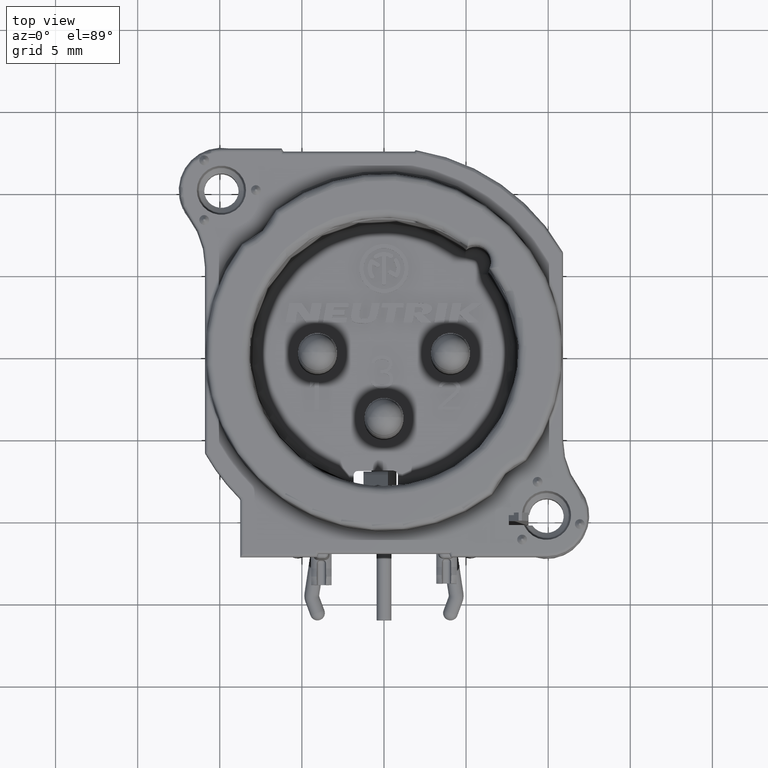
[diagram: clean part render]
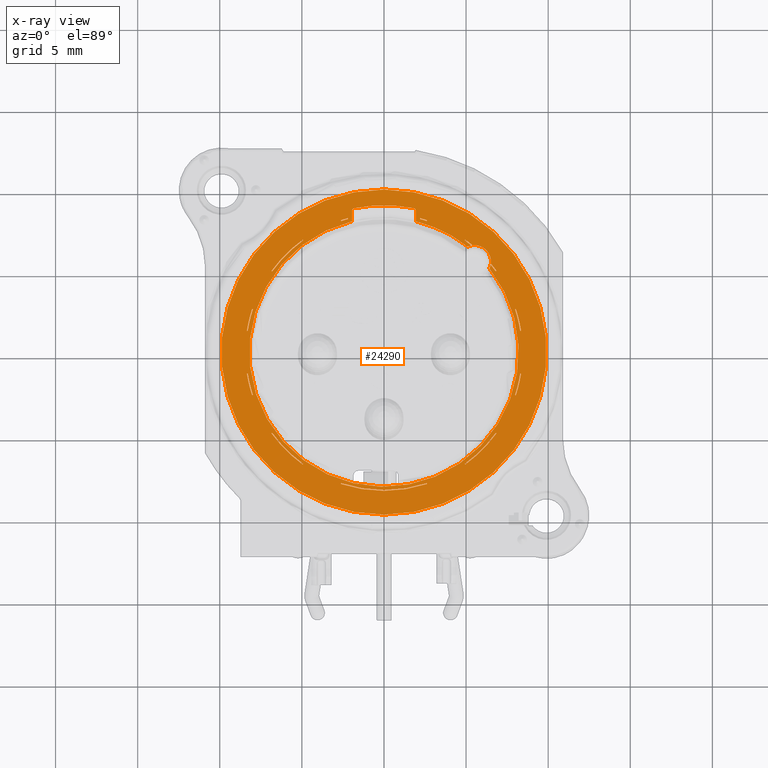
[diagram: x-ray — body ghosted, one internal face saturated and labeled with its STEP entity id]
A machine part, top view, then the same camera in x-ray: the body is ghosted and one INTERNAL B-rep face — a face not visible from any outside direction — is saturated and labeled: STEP entity #24290.
In plain terms, the highlighted planar face has unit normal (0, 0, -1).
Its self-contained STEP definition (entity closure, byte-faithful):
#6=DIRECTION('',(-8.910065241986E-1,4.539904997194E-1,0.E0));
#7=VECTOR('',#6,5.304026074555E-2);
#8=CARTESIAN_POINT('',(-7.982337784483E0,2.608043317220E0,2.7E0));
#9=LINE('',#8,#7);
#15=CARTESIAN_POINT('',(5.515432893255E0,5.515432893255E0,2.7E0));
#16=DIRECTION('',(0.E0,0.E0,1.E0));
#17=DIRECTION('',(9.081595900515E-1,-4.186241261531E-1,0.E0));
#18=AXIS2_PLACEMENT_3D('',#15,#16,#17);
#20=DIRECTION('',(0.E0,1.E0,0.E0));
#21=VECTOR('',#20,6.140104234412E-1);
#22=CARTESIAN_POINT('',(-1.95E0,7.964766161037E0,2.7E0));
#23=LINE('',#22,#21);
#24=CARTESIAN_POINT('',(0.E0,0.E0,2.7E0));
#25=DIRECTION('',(0.E0,0.E0,-1.E0));
#26=DIRECTION('',(-2.006225857042E-1,9.796686062671E-1,0.E0));
#27=AXIS2_PLACEMENT_3D('',#24,#25,#26);
#29=DIRECTION('',(0.E0,-1.E0,0.E0));
#30=VECTOR('',#29,6.140104234412E-1);
#31=CARTESIAN_POINT('',(1.95E0,8.578776584478E0,2.7E0));
#32=LINE('',#31,#30);
#33=CARTESIAN_POINT('',(0.E0,0.E0,2.7E0));
#34=DIRECTION('',(0.E0,0.E0,-1.E0));
#35=DIRECTION('',(2.378048780488E-1,9.713129464679E-1,0.E0));
#36=AXIS2_PLACEMENT_3D('',#33,#34,#35);
#38=CARTESIAN_POINT('',(5.515432893255E0,5.515432893255E0,2.7E0));
#39=DIRECTION('',(0.E0,0.E0,1.E0));
#40=DIRECTION('',(-1.941287962017E-1,9.809760499040E-1,0.E0));
#41=AXIS2_PLACEMENT_3D('',#38,#39,#40);
#43=CARTESIAN_POINT('',(5.515432893255E0,5.515432893255E0,2.7E0));
#44=DIRECTION('',(0.E0,0.E0,1.E0));
#45=DIRECTION('',(9.921263900771E-1,-1.252406727570E-1,0.E0));
#46=AXIS2_PLACEMENT_3D('',#43,#44,#45);
#58=CARTESIAN_POINT('',(0.E0,0.E0,2.7E0));
#59=DIRECTION('',(0.E0,0.E0,-1.E0));
#60=DIRECTION('',(0.E0,1.E0,0.E0));
#61=AXIS2_PLACEMENT_3D('',#58,#59,#60);
#99=CARTESIAN_POINT('',(0.E0,0.E0,2.7E0));
#100=DIRECTION('',(0.E0,0.E0,-1.E0));
#101=DIRECTION('',(0.E0,-1.E0,0.E0));
#102=AXIS2_PLACEMENT_3D('',#99,#100,#101);
#13927=CARTESIAN_POINT('',(0.E0,0.E0,2.7E0));
#13928=DIRECTION('',(0.E0,0.E0,-1.E0));
#13929=DIRECTION('',(2.619942776560E-1,9.650694267645E-1,0.E0));
#13930=AXIS2_PLACEMENT_3D('',#13927,#13928,#13929);
#13942=DIRECTION('',(4.539904997543E-1,8.910065241809E-1,0.E0));
#13943=VECTOR('',#13942,5.304026079342E-2);
#13944=CARTESIAN_POINT('',(2.608043317218E0,7.982337784483E0,2.7E0));
#13945=LINE('',#13944,#13943);
#13951=CARTESIAN_POINT('',(0.E0,0.E0,2.7E0));
#13952=DIRECTION('',(0.E0,0.E0,-1.E0));
#13953=DIRECTION('',(7.701253589742E-1,6.378925704731E-1,0.E0));
#13954=AXIS2_PLACEMENT_3D('',#13951,#13952,#13953);
#13978=CARTESIAN_POINT('',(0.E0,0.E0,2.7E0));
#13979=DIRECTION('',(0.E0,0.E0,-1.E0));
#13980=DIRECTION('',(9.502481660337E-1,3.114938570015E-1,0.E0));
#13981=AXIS2_PLACEMENT_3D('',#13978,#13979,#13980);
#14014=CARTESIAN_POINT('',(0.E0,0.E0,2.7E0));
#14015=DIRECTION('',(0.E0,0.E0,-1.E0));
#14016=DIRECTION('',(9.880925673401E-1,-1.538605809400E-1,0.E0));
#14017=AXIS2_PLACEMENT_3D('',#14014,#14015,#14016);
#14050=CARTESIAN_POINT('',(0.E0,0.E0,2.7E0));
#14051=DIRECTION('',(0.E0,0.E0,-1.E0));
#14052=DIRECTION('',(8.105456819702E-1,-5.856754198696E-1,0.E0));
#14053=AXIS2_PLACEMENT_3D('',#14050,#14051,#14052);
#14086=CARTESIAN_POINT('',(0.E0,0.E0,2.7E0));
#14087=DIRECTION('',(0.E0,0.E0,-1.E0));
#14088=DIRECTION('',(3.114938570028E-1,-9.502481660332E-1,0.E0));
#14089=AXIS2_PLACEMENT_3D('',#14086,#14087,#14088);
#14122=CARTESIAN_POINT('',(0.E0,0.E0,2.7E0));
#14123=DIRECTION('',(0.E0,0.E0,-1.E0));
#14124=DIRECTION('',(-5.856754198634E-1,-8.105456819747E-1,0.E0));
#14125=AXIS2_PLACEMENT_3D('',#14122,#14123,#14124);
#14158=CARTESIAN_POINT('',(0.E0,0.E0,2.7E0));
#14159=DIRECTION('',(0.E0,0.E0,-1.E0));
#14160=DIRECTION('',(-9.502481660302E-1,-3.114938570120E-1,0.E0));
#14161=AXIS2_PLACEMENT_3D('',#14158,#14159,#14160);
#14194=CARTESIAN_POINT('',(0.E0,0.E0,2.7E0));
#14195=DIRECTION('',(0.E0,0.E0,-1.E0));
#14196=DIRECTION('',(-9.880925673419E-1,1.538605809285E-1,0.E0));
#14197=AXIS2_PLACEMENT_3D('',#14194,#14195,#14196);
#14230=CARTESIAN_POINT('',(0.E0,0.E0,2.7E0));
#14231=DIRECTION('',(0.E0,0.E0,-1.E0));
#14232=DIRECTION('',(-8.105456819795E-1,5.856754198568E-1,0.E0));
#14233=AXIS2_PLACEMENT_3D('',#14230,#14231,#14232);
#14266=CARTESIAN_POINT('',(0.E0,0.E0,2.7E0));
#14267=DIRECTION('',(0.E0,0.E0,-1.E0));
#14268=DIRECTION('',(-3.114938570140E-1,9.502481660296E-1,0.E0));
#14269=AXIS2_PLACEMENT_3D('',#14266,#14267,#14268);
#14302=CARTESIAN_POINT('',(0.E0,0.E0,2.7E0));
#14303=DIRECTION('',(0.E0,0.E0,-1.E0));
#14304=DIRECTION('',(2.603694566774E-1,9.655090605631E-1,0.E0));
#14305=AXIS2_PLACEMENT_3D('',#14302,#14303,#14304);
#14338=CARTESIAN_POINT('',(0.E0,0.E0,2.7E0));
#14339=DIRECTION('',(0.E0,0.E0,-1.E0));
#14340=DIRECTION('',(5.856754198668E-1,8.105456819722E-1,0.E0));
#14341=AXIS2_PLACEMENT_3D('',#14338,#14339,#14340);
#14388=CARTESIAN_POINT('',(0.E0,0.E0,2.7E0));
#14389=DIRECTION('',(0.E0,0.E0,-1.E0));
#14390=DIRECTION('',(5.864628337465E-1,8.099761383115E-1,0.E0));
#14391=AXIS2_PLACEMENT_3D('',#14388,#14389,#14390);
#14403=DIRECTION('',(-4.539904997710E-1,-8.910065241723E-1,0.E0));
#14404=VECTOR('',#14403,5.304026071909E-2);
#14405=CARTESIAN_POINT('',(4.948957297757E0,6.849111012578E0,2.7E0));
#14406=LINE('',#14405,#14404);
#14597=CARTESIAN_POINT('',(0.E0,0.E0,2.7E0));
#14598=DIRECTION('',(0.E0,0.E0,1.E0));
#14599=DIRECTION('',(-2.378048780488E-1,9.713129464679E-1,0.E0));
#14600=AXIS2_PLACEMENT_3D('',#14597,#14598,#14599);
#14623=CARTESIAN_POINT('',(1.95E0,8.578776584478E0,2.7E0));
#14625=CARTESIAN_POINT('',(1.95E0,8.578776584478E0,2.7E0));
#14626=CARTESIAN_POINT('',(1.950000000032E0,8.602134908610E0,2.7E0));
#14627=CARTESIAN_POINT('',(1.942273362003E0,8.645624592729E0,2.7E0));
#14628=CARTESIAN_POINT('',(1.909973589364E0,8.703636616568E0,2.699999999999E0));
#14629=CARTESIAN_POINT('',(1.859457158406E0,8.747109287319E0,2.700000000005E0));
#14630=CARTESIAN_POINT('',(1.818430073848E0,8.763353037773E0,2.699999999989E0));
#14631=CARTESIAN_POINT('',(1.795572142117E0,8.768034026171E0,2.699999999989E0));
#14637=CARTESIAN_POINT('',(1.795572142117E0,8.768034026171E0,2.699999999989E0));
#14643=CARTESIAN_POINT('',(-1.795572142117E0,8.768034026171E0,
2.699999999989E0));
#14650=CARTESIAN_POINT('',(-1.795572142117E0,8.768034026171E0,
2.699999999989E0));
#14651=CARTESIAN_POINT('',(-1.818465818642E0,8.763345717734E0,
2.699999999989E0));
#14652=CARTESIAN_POINT('',(-1.859532717103E0,8.747022878452E0,
2.700000000005E0));
#14653=CARTESIAN_POINT('',(-1.909784034211E0,8.703872645540E0,
2.699999999999E0));
#14654=CARTESIAN_POINT('',(-1.942353347184E0,8.645505213761E0,2.7E0));
#14655=CARTESIAN_POINT('',(-1.950000000032E0,8.602085701230E0,2.7E0));
#14656=CARTESIAN_POINT('',(-1.95E0,8.578776584478E0,2.7E0));
#14666=CARTESIAN_POINT('',(-1.95E0,8.578776584478E0,2.7E0));
#15102=CARTESIAN_POINT('',(0.E0,0.E0,2.7E0));
#15103=DIRECTION('',(0.E0,0.E0,-1.E0));
#15104=DIRECTION('',(7.736034815011E-1,6.336699877771E-1,0.E0));
#15105=AXIS2_PLACEMENT_3D('',#15102,#15103,#15104);
#15117=DIRECTION('',(8.910065241797E-1,4.539904997565E-1,0.E0));
#15118=VECTOR('',#15117,5.304026072539E-2);
#15119=CARTESIAN_POINT('',(6.801851794227E0,4.924877523283E0,2.7E0));
#15120=LINE('',#15119,#15118);
#15278=DIRECTION('',(-8.910065241884E-1,-4.539904997395E-1,0.E0));
#15279=VECTOR('',#15278,5.304026065426E-2);
#15280=CARTESIAN_POINT('',(8.029597002771E0,2.632123091659E0,2.7E0));
#15281=LINE('',#15280,#15279);
#15287=CARTESIAN_POINT('',(0.E0,0.E0,2.7E0));
#15288=DIRECTION('',(0.E0,0.E0,-1.E0));
#15289=DIRECTION('',(9.505504278785E-1,3.105702562383E-1,0.E0));
#15290=AXIS2_PLACEMENT_3D('',#15287,#15288,#15289);
#15302=DIRECTION('',(1.E0,2.297882426440E-11,0.E0));
#15303=VECTOR('',#15302,5.304026099899E-2);
#15304=CARTESIAN_POINT('',(8.296341933176E0,1.300121908859E0,2.7E0));
#15305=LINE('',#15304,#15303);
#15414=DIRECTION('',(-1.E0,-2.262717173756E-11,0.E0));
#15415=VECTOR('',#15414,5.304026077761E-2);
#15416=CARTESIAN_POINT('',(-8.296341933176E0,-1.300121908858E0,2.7E0));
#15417=LINE('',#15416,#15415);
#15648=DIRECTION('',(-1.E0,-1.255902226447E-14,0.E0));
#15649=VECTOR('',#15648,5.304026067855E-2);
#15650=CARTESIAN_POINT('',(8.349382193855E0,-1.300121908860E0,2.7E0));
#15651=LINE('',#15650,#15649);
#15657=CARTESIAN_POINT('',(0.E0,0.E0,2.7E0));
#15658=DIRECTION('',(0.E0,0.E0,-1.E0));
#15659=DIRECTION('',(9.879425786437E-1,-1.548207392530E-1,0.E0));
#15660=AXIS2_PLACEMENT_3D('',#15657,#15658,#15659);
#15672=DIRECTION('',(8.910065241986E-1,-4.539904997195E-1,0.E0));
#15673=VECTOR('',#15672,5.304026096835E-2);
#15674=CARTESIAN_POINT('',(7.982337784483E0,-2.608043317220E0,2.7E0));
#15675=LINE('',#15674,#15673);
#15803=DIRECTION('',(-8.910065241884E-1,4.539904997396E-1,0.E0));
#15804=VECTOR('',#15803,5.304026065698E-2);
#15805=CARTESIAN_POINT('',(6.849111012522E0,-4.948957297729E0,2.7E0));
#15806=LINE('',#15805,#15804);
#15817=CARTESIAN_POINT('',(0.E0,0.E0,2.7E0));
#15818=DIRECTION('',(0.E0,0.E0,-1.E0));
#15819=DIRECTION('',(8.099761383115E-1,-5.864628337465E-1,0.E0));
#15820=AXIS2_PLACEMENT_3D('',#15817,#15818,#15819);
#15832=DIRECTION('',(4.539904997607E-1,-8.910065241776E-1,0.E0));
#15833=VECTOR('',#15832,5.304026094492E-2);
#15834=CARTESIAN_POINT('',(4.924877523286E0,-6.801851794233E0,2.7E0));
#15835=LINE('',#15834,#15833);
#15963=DIRECTION('',(-4.539904997396E-1,8.910065241883E-1,0.E0));
#15964=VECTOR('',#15963,5.304026068019E-2);
#15965=CARTESIAN_POINT('',(2.632123091671E0,-8.029597002794E0,2.7E0));
#15966=LINE('',#15965,#15964);
#15977=CARTESIAN_POINT('',(0.E0,0.E0,2.7E0));
#15978=DIRECTION('',(0.E0,0.E0,-1.E0));
#15979=DIRECTION('',(3.105702562383E-1,-9.505504278785E-1,0.E0));
#15980=AXIS2_PLACEMENT_3D('',#15977,#15978,#15979);
#15992=DIRECTION('',(-4.539904997194E-1,-8.910065241986E-1,0.E0));
#15993=VECTOR('',#15992,5.304026085427E-2);
#15994=CARTESIAN_POINT('',(-2.608043317220E0,-7.982337784483E0,2.7E0));
#15995=LINE('',#15994,#15993);
#16123=DIRECTION('',(4.539904997395E-1,8.910065241884E-1,0.E0));
#16124=VECTOR('',#16123,5.304026079539E-2);
#16125=CARTESIAN_POINT('',(-4.948957297792E0,-6.849111012645E0,2.7E0));
#16126=LINE('',#16125,#16124);
#16137=CARTESIAN_POINT('',(0.E0,0.E0,2.7E0));
#16138=DIRECTION('',(0.E0,0.E0,-1.E0));
#16139=DIRECTION('',(-5.864628337465E-1,-8.099761383115E-1,0.E0));
#16140=AXIS2_PLACEMENT_3D('',#16137,#16138,#16139);
#16152=DIRECTION('',(-8.910065241777E-1,-4.539904997604E-1,0.E0));
#16153=VECTOR('',#16152,5.304026079527E-2);
#16154=CARTESIAN_POINT('',(-6.801851794233E0,-4.924877523286E0,2.7E0));
#16155=LINE('',#16154,#16153);
#16283=DIRECTION('',(8.910065241883E-1,4.539904997396E-1,0.E0));
#16284=VECTOR('',#16283,5.304026085667E-2);
#16285=CARTESIAN_POINT('',(-8.029597002951E0,-2.632123091751E0,2.7E0));
#16286=LINE('',#16285,#16284);
#16297=CARTESIAN_POINT('',(0.E0,0.E0,2.7E0));
#16298=DIRECTION('',(0.E0,0.E0,-1.E0));
#16299=DIRECTION('',(-9.505504278785E-1,-3.105702562383E-1,0.E0));
#16300=AXIS2_PLACEMENT_3D('',#16297,#16298,#16299);
#16490=DIRECTION('',(1.E0,0.E0,0.E0));
#16491=VECTOR('',#16490,5.304026089103E-2);
#16492=CARTESIAN_POINT('',(-8.349382194067E0,1.300121908860E0,2.7E0));
#16493=LINE('',#16492,#16491);
#16499=CARTESIAN_POINT('',(0.E0,0.E0,2.7E0));
#16500=DIRECTION('',(0.E0,0.E0,-1.E0));
#16501=DIRECTION('',(-9.879425786437E-1,1.548207392530E-1,0.E0));
#16502=AXIS2_PLACEMENT_3D('',#16499,#16500,#16501);
#16715=DIRECTION('',(8.910065241884E-1,-4.539904997395E-1,0.E0));
#16716=VECTOR('',#16715,5.304026094505E-2);
#16717=CARTESIAN_POINT('',(-6.849111012779E0,4.948957297860E0,2.7E0));
#16718=LINE('',#16717,#16716);
#16724=CARTESIAN_POINT('',(0.E0,0.E0,2.7E0));
#16725=DIRECTION('',(0.E0,0.E0,-1.E0));
#16726=DIRECTION('',(-8.099761383115E-1,5.864628337465E-1,0.E0));
#16727=AXIS2_PLACEMENT_3D('',#16724,#16725,#16726);
#16739=DIRECTION('',(-4.539904997601E-1,8.910065241779E-1,0.E0));
#16740=VECTOR('',#16739,5.304026065688E-2);
#16741=CARTESIAN_POINT('',(-4.924877523286E0,6.801851794233E0,2.7E0));
#16742=LINE('',#16741,#16740);
#16870=DIRECTION('',(4.539904997395E-1,-8.910065241884E-1,0.E0));
#16871=VECTOR('',#16870,5.304026089610E-2);
#16872=CARTESIAN_POINT('',(-2.632123091769E0,8.029597002986E0,2.7E0));
#16873=LINE('',#16872,#16871);
#16884=CARTESIAN_POINT('',(0.E0,0.E0,2.7E0));
#16885=DIRECTION('',(0.E0,0.E0,-1.E0));
#16886=DIRECTION('',(-3.105702562383E-1,9.505504278785E-1,0.E0));
#16887=AXIS2_PLACEMENT_3D('',#16884,#16885,#16886);
#16899=DIRECTION('',(-2.830307821840E-11,1.E0,0.E0));
#16900=VECTOR('',#16899,5.428910079054E-2);
#16901=CARTESIAN_POINT('',(-2.200121908858E0,8.104262460967E0,2.7E0));
#16902=LINE('',#16901,#16900);
#17766=DIRECTION('',(-1.404519808106E-11,-1.E0,0.E0));
#17767=VECTOR('',#17766,5.428910072408E-2);
#17768=CARTESIAN_POINT('',(2.200121908860E0,8.158551561691E0,2.7E0));
#17769=LINE('',#17768,#17767);
#23273=CARTESIAN_POINT('',(1.95E0,7.964766161037E0,2.7E0));
#23274=CARTESIAN_POINT('',(5.096808767102E0,6.423592483307E0,2.7E0));
#23275=VERTEX_POINT('',#23273);
#23276=VERTEX_POINT('',#23274);
#23277=CARTESIAN_POINT('',(-1.95E0,7.964766161037E0,2.7E0));
#23278=CARTESIAN_POINT('',(6.423592483307E0,5.096808767102E0,2.7E0));
#23279=VERTEX_POINT('',#23277);
#23280=VERTEX_POINT('',#23278);
#23420=CARTESIAN_POINT('',(0.E0,9.903460533872E0,2.7E0));
#23421=CARTESIAN_POINT('',(0.E0,-9.903460533872E0,2.7E0));
#23422=VERTEX_POINT('',#23420);
#23423=VERTEX_POINT('',#23421);
#23431=VERTEX_POINT('',#14637);
#23432=VERTEX_POINT('',#14623);
#23441=VERTEX_POINT('',#14666);
#23442=VERTEX_POINT('',#14643);
#23612=CARTESIAN_POINT('',(6.507559283332E0,5.390192220498E0,2.7E0));
#23613=CARTESIAN_POINT('',(6.849111012665E0,4.948957297875E0,2.7E0));
#23614=VERTEX_POINT('',#23612);
#23615=VERTEX_POINT('',#23613);
#23616=CARTESIAN_POINT('',(8.029597002984E0,2.632123091662E0,2.7E0));
#23617=CARTESIAN_POINT('',(8.349382194047E0,1.300121908797E0,2.7E0));
#23618=VERTEX_POINT('',#23616);
#23619=VERTEX_POINT('',#23617);
#23620=CARTESIAN_POINT('',(8.349382194024E0,-1.300121908943E0,2.7E0));
#23621=CARTESIAN_POINT('',(8.029597002939E0,-2.632123091800E0,2.7E0));
#23622=VERTEX_POINT('',#23620);
#23623=VERTEX_POINT('',#23621);
#23624=CARTESIAN_POINT('',(6.849111012648E0,-4.948957297898E0,2.7E0));
#23625=CARTESIAN_POINT('',(4.948957297790E0,-6.849111012726E0,2.7E0));
#23626=VERTEX_POINT('',#23624);
#23627=VERTEX_POINT('',#23625);
#23628=CARTESIAN_POINT('',(2.632123091674E0,-8.029597002981E0,2.7E0));
#23629=CARTESIAN_POINT('',(-2.632123091750E0,-8.029597002956E0,2.7E0));
#23630=VERTEX_POINT('',#23628);
#23631=VERTEX_POINT('',#23629);
#23632=CARTESIAN_POINT('',(-4.948957297846E0,-6.849111012686E0,2.7E0));
#23633=CARTESIAN_POINT('',(-6.849111012686E0,-4.948957297846E0,2.7E0));
#23634=VERTEX_POINT('',#23632);
#23635=VERTEX_POINT('',#23633);
#23636=CARTESIAN_POINT('',(-8.029597002955E0,-2.632123091751E0,2.7E0));
#23637=CARTESIAN_POINT('',(-8.349382194031E0,-1.300121908898E0,2.7E0));
#23638=VERTEX_POINT('',#23636);
#23639=VERTEX_POINT('',#23637);
#23640=CARTESIAN_POINT('',(-8.349382194039E0,1.300121908846E0,2.7E0));
#23641=CARTESIAN_POINT('',(-8.029597002971E0,2.632123091702E0,2.7E0));
#23642=VERTEX_POINT('',#23640);
#23643=VERTEX_POINT('',#23641);
#23644=CARTESIAN_POINT('',(-6.849111012726E0,4.948957297790E0,2.7E0));
#23645=CARTESIAN_POINT('',(-4.948957297898E0,6.849111012649E0,2.7E0));
#23646=VERTEX_POINT('',#23644);
#23647=VERTEX_POINT('',#23645);
#23648=CARTESIAN_POINT('',(-2.632123091769E0,8.029597002950E0,2.7E0));
#23649=CARTESIAN_POINT('',(-2.200121908874E0,8.158551561772E0,2.7E0));
#23650=VERTEX_POINT('',#23648);
#23651=VERTEX_POINT('',#23649);
#23652=CARTESIAN_POINT('',(2.200121908924E0,8.158551561759E0,2.7E0));
#23653=CARTESIAN_POINT('',(2.632123091723E0,8.029597002964E0,2.7E0));
#23654=VERTEX_POINT('',#23652);
#23655=VERTEX_POINT('',#23653);
#23656=CARTESIAN_POINT('',(4.948957297875E0,6.849111012665E0,2.7E0));
#23657=CARTESIAN_POINT('',(5.390192220498E0,6.507559283332E0,2.7E0));
#23658=VERTEX_POINT('',#23656);
#23659=VERTEX_POINT('',#23657);
#23660=CARTESIAN_POINT('',(-2.200121908858E0,8.104262460967E0,2.7E0));
#23661=VERTEX_POINT('',#23660);
#23662=CARTESIAN_POINT('',(-2.608043317219E0,7.982337784483E0,2.7E0));
#23663=VERTEX_POINT('',#23662);
#23664=CARTESIAN_POINT('',(-4.924877523286E0,6.801851794233E0,2.7E0));
#23665=VERTEX_POINT('',#23664);
#23666=CARTESIAN_POINT('',(-6.801851794232E0,4.924877523287E0,2.7E0));
#23667=VERTEX_POINT('',#23666);
#23668=CARTESIAN_POINT('',(-7.982337784483E0,2.608043317220E0,2.7E0));
#23669=VERTEX_POINT('',#23668);
#23670=CARTESIAN_POINT('',(-8.296341933176E0,1.300121908860E0,2.7E0));
#23671=VERTEX_POINT('',#23670);
#23672=CARTESIAN_POINT('',(-7.982337784483E0,-2.608043317219E0,2.7E0));
#23673=VERTEX_POINT('',#23672);
#23674=CARTESIAN_POINT('',(-6.801851794233E0,-4.924877523286E0,2.7E0));
#23675=VERTEX_POINT('',#23674);
#23676=CARTESIAN_POINT('',(-4.924877523287E0,-6.801851794232E0,2.7E0));
#23677=VERTEX_POINT('',#23676);
#23678=CARTESIAN_POINT('',(-2.608043317220E0,-7.982337784483E0,2.7E0));
#23679=VERTEX_POINT('',#23678);
#23680=CARTESIAN_POINT('',(2.608043317219E0,-7.982337784483E0,2.7E0));
#23681=VERTEX_POINT('',#23680);
#23682=CARTESIAN_POINT('',(4.924877523286E0,-6.801851794233E0,2.7E0));
#23683=VERTEX_POINT('',#23682);
#23684=CARTESIAN_POINT('',(6.801851794232E0,-4.924877523287E0,2.7E0));
#23685=VERTEX_POINT('',#23684);
#23686=CARTESIAN_POINT('',(7.982337784483E0,-2.608043317220E0,2.7E0));
#23687=VERTEX_POINT('',#23686);
#23688=CARTESIAN_POINT('',(8.296341933176E0,-1.300121908860E0,2.7E0));
#23689=VERTEX_POINT('',#23688);
#23690=CARTESIAN_POINT('',(8.296341933176E0,1.300121908859E0,2.7E0));
#23691=VERTEX_POINT('',#23690);
#23692=CARTESIAN_POINT('',(7.982337784483E0,2.608043317219E0,2.7E0));
#23693=VERTEX_POINT('',#23692);
#23694=CARTESIAN_POINT('',(6.801851794227E0,4.924877523283E0,2.7E0));
#23695=VERTEX_POINT('',#23694);
#23696=CARTESIAN_POINT('',(4.924877523286E0,6.801851794233E0,2.7E0));
#23697=VERTEX_POINT('',#23696);
#23698=CARTESIAN_POINT('',(2.608043317218E0,7.982337784483E0,2.7E0));
#23699=VERTEX_POINT('',#23698);
#23700=CARTESIAN_POINT('',(2.200121908859E0,8.104262460967E0,2.7E0));
#23701=VERTEX_POINT('',#23700);
#23702=CARTESIAN_POINT('',(5.321304097053E0,6.496408943159E0,2.7E0));
#23703=VERTEX_POINT('',#23702);
#23704=CARTESIAN_POINT('',(-8.296341933176E0,-1.300121908858E0,2.7E0));
#23705=VERTEX_POINT('',#23704);
#23706=CARTESIAN_POINT('',(6.496408943159E0,5.321304097053E0,2.7E0));
#23707=VERTEX_POINT('',#23706);
#24146=CARTESIAN_POINT('',(0.E0,0.E0,2.7E0));
#24147=DIRECTION('',(0.E0,0.E0,-1.E0));
#24148=DIRECTION('',(0.E0,-1.E0,0.E0));
#24149=AXIS2_PLACEMENT_3D('',#24146,#24147,#24148);
#24150=PLANE('',#24149);
#24152=ORIENTED_EDGE('',*,*,#24151,.F.);
#24154=ORIENTED_EDGE('',*,*,#24153,.F.);
#24155=EDGE_LOOP('',(#24152,#24154));
#24156=FACE_OUTER_BOUND('',#24155,.F.);
#24158=ORIENTED_EDGE('',*,*,#24157,.T.);
#24160=ORIENTED_EDGE('',*,*,#24159,.F.);
#24162=ORIENTED_EDGE('',*,*,#24161,.F.);
#24164=ORIENTED_EDGE('',*,*,#24163,.F.);
#24166=ORIENTED_EDGE('',*,*,#24165,.F.);
#24168=ORIENTED_EDGE('',*,*,#24167,.T.);
#24170=ORIENTED_EDGE('',*,*,#24169,.F.);
#24172=ORIENTED_EDGE('',*,*,#24171,.T.);
#24174=ORIENTED_EDGE('',*,*,#24173,.F.);
#24176=ORIENTED_EDGE('',*,*,#24175,.T.);
#24178=ORIENTED_EDGE('',*,*,#24177,.T.);
#24180=ORIENTED_EDGE('',*,*,#24179,.F.);
#24182=ORIENTED_EDGE('',*,*,#24181,.F.);
#24184=ORIENTED_EDGE('',*,*,#24183,.F.);
#24186=ORIENTED_EDGE('',*,*,#24185,.T.);
#24188=ORIENTED_EDGE('',*,*,#24187,.F.);
#24189=EDGE_LOOP('',(#24158,#24160,#24162,#24164,#24166,#24168,#24170,#24172,
#24174,#24176,#24178,#24180,#24182,#24184,#24186,#24188));
#24190=FACE_BOUND('',#24189,.F.);
#24192=ORIENTED_EDGE('',*,*,#24191,.T.);
#24194=ORIENTED_EDGE('',*,*,#24193,.F.);
#24196=ORIENTED_EDGE('',*,*,#24195,.F.);
#24198=ORIENTED_EDGE('',*,*,#24197,.F.);
#24199=EDGE_LOOP('',(#24192,#24194,#24196,#24198));
#24200=FACE_BOUND('',#24199,.F.);
#24202=ORIENTED_EDGE('',*,*,#24201,.T.);
#24204=ORIENTED_EDGE('',*,*,#24203,.F.);
#24206=ORIENTED_EDGE('',*,*,#24205,.F.);
#24208=ORIENTED_EDGE('',*,*,#24207,.F.);
#24209=EDGE_LOOP('',(#24202,#24204,#24206,#24208));
#24210=FACE_BOUND('',#24209,.F.);
#24212=ORIENTED_EDGE('',*,*,#24211,.T.);
#24214=ORIENTED_EDGE('',*,*,#24213,.F.);
#24216=ORIENTED_EDGE('',*,*,#24215,.F.);
#24218=ORIENTED_EDGE('',*,*,#24217,.F.);
#24219=EDGE_LOOP('',(#24212,#24214,#24216,#24218));
#24220=FACE_BOUND('',#24219,.F.);
#24222=ORIENTED_EDGE('',*,*,#24221,.T.);
#24224=ORIENTED_EDGE('',*,*,#24223,.F.);
#24226=ORIENTED_EDGE('',*,*,#24225,.F.);
#24228=ORIENTED_EDGE('',*,*,#24227,.F.);
#24229=EDGE_LOOP('',(#24222,#24224,#24226,#24228));
#24230=FACE_BOUND('',#24229,.F.);
#24232=ORIENTED_EDGE('',*,*,#24231,.T.);
#24234=ORIENTED_EDGE('',*,*,#24233,.F.);
#24236=ORIENTED_EDGE('',*,*,#24235,.F.);
#24238=ORIENTED_EDGE('',*,*,#24237,.F.);
#24239=EDGE_LOOP('',(#24232,#24234,#24236,#24238));
#24240=FACE_BOUND('',#24239,.F.);
#24242=ORIENTED_EDGE('',*,*,#24241,.T.);
#24244=ORIENTED_EDGE('',*,*,#24243,.F.);
#24246=ORIENTED_EDGE('',*,*,#24245,.F.);
#24248=ORIENTED_EDGE('',*,*,#24247,.F.);
#24249=EDGE_LOOP('',(#24242,#24244,#24246,#24248));
#24250=FACE_BOUND('',#24249,.F.);
#24252=ORIENTED_EDGE('',*,*,#24251,.T.);
#24253=ORIENTED_EDGE('',*,*,#24136,.F.);
#24255=ORIENTED_EDGE('',*,*,#24254,.F.);
#24257=ORIENTED_EDGE('',*,*,#24256,.F.);
#24258=EDGE_LOOP('',(#24252,#24253,#24255,#24257));
#24259=FACE_BOUND('',#24258,.F.);
#24261=ORIENTED_EDGE('',*,*,#24260,.T.);
#24263=ORIENTED_EDGE('',*,*,#24262,.F.);
#24265=ORIENTED_EDGE('',*,*,#24264,.F.);
#24267=ORIENTED_EDGE('',*,*,#24266,.F.);
#24268=EDGE_LOOP('',(#24261,#24263,#24265,#24267));
#24269=FACE_BOUND('',#24268,.F.);
#24271=ORIENTED_EDGE('',*,*,#24270,.T.);
#24273=ORIENTED_EDGE('',*,*,#24272,.F.);
#24275=ORIENTED_EDGE('',*,*,#24274,.F.);
#24277=ORIENTED_EDGE('',*,*,#24276,.F.);
#24278=EDGE_LOOP('',(#24271,#24273,#24275,#24277));
#24279=FACE_BOUND('',#24278,.F.);
#24281=ORIENTED_EDGE('',*,*,#24280,.T.);
#24283=ORIENTED_EDGE('',*,*,#24282,.F.);
#24285=ORIENTED_EDGE('',*,*,#24284,.F.);
#24287=ORIENTED_EDGE('',*,*,#24286,.F.);
#24288=EDGE_LOOP('',(#24281,#24283,#24285,#24287));
#24289=FACE_BOUND('',#24288,.F.);
#24290=ADVANCED_FACE('',(#24156,#24190,#24200,#24210,#24220,#24230,#24240,
#24250,#24259,#24269,#24279,#24289),#24150,.T.);
#19=CIRCLE('',#18,1.E0);
#28=CIRCLE('',#27,8.95E0);
#37=CIRCLE('',#36,8.2E0);
#42=CIRCLE('',#41,1.E0);
#47=CIRCLE('',#46,1.E0);
#62=CIRCLE('',#61,9.903460533872E0);
#103=CIRCLE('',#102,9.903460533872E0);
#13931=CIRCLE('',#13930,8.397595277821E0);
#13955=CIRCLE('',#13954,8.45E0);
#13982=CIRCLE('',#13981,8.45E0);
#14018=CIRCLE('',#14017,8.45E0);
#14054=CIRCLE('',#14053,8.45E0);
#14090=CIRCLE('',#14089,8.45E0);
#14126=CIRCLE('',#14125,8.45E0);
#14162=CIRCLE('',#14161,8.45E0);
#14198=CIRCLE('',#14197,8.45E0);
#14234=CIRCLE('',#14233,8.45E0);
#14270=CIRCLE('',#14269,8.45E0);
#14306=CIRCLE('',#14305,8.45E0);
#14342=CIRCLE('',#14341,8.45E0);
#14392=CIRCLE('',#14391,8.397595277821E0);
#14601=CIRCLE('',#14600,8.2E0);
#14632=B_SPLINE_CURVE_WITH_KNOTS('',3,(#14625,#14626,#14627,#14628,#14629,
#14630,#14631),.UNSPECIFIED.,.F.,.F.,(4,1,1,1,4),(0.E0,2.5E-1,5.E-1,7.5E-1,
1.E0),.UNSPECIFIED.);
#14657=B_SPLINE_CURVE_WITH_KNOTS('',3,(#14650,#14651,#14652,#14653,#14654,
#14655,#14656),.UNSPECIFIED.,.F.,.F.,(4,1,1,1,4),(0.E0,2.5E-1,5.E-1,7.5E-1,
1.E0),.UNSPECIFIED.);
#15106=CIRCLE('',#15105,8.397595277821E0);
#15291=CIRCLE('',#15290,8.397595277821E0);
#15661=CIRCLE('',#15660,8.397595277821E0);
#15821=CIRCLE('',#15820,8.397595277821E0);
#15981=CIRCLE('',#15980,8.397595277821E0);
#16141=CIRCLE('',#16140,8.397595277821E0);
#16301=CIRCLE('',#16300,8.397595277821E0);
#16503=CIRCLE('',#16502,8.397595277821E0);
#16728=CIRCLE('',#16727,8.397595277821E0);
#16888=CIRCLE('',#16887,8.397595277821E0);
#24136=EDGE_CURVE('',#23669,#23643,#9,.T.);
#24151=EDGE_CURVE('',#23422,#23423,#62,.T.);
#24153=EDGE_CURVE('',#23423,#23422,#103,.T.);
#24157=EDGE_CURVE('',#23614,#23615,#13955,.T.);
#24159=EDGE_CURVE('',#23695,#23615,#15120,.T.);
#24161=EDGE_CURVE('',#23707,#23695,#15106,.T.);
#24163=EDGE_CURVE('',#23280,#23707,#19,.T.);
#24165=EDGE_CURVE('',#23279,#23280,#14601,.T.);
#24167=EDGE_CURVE('',#23279,#23441,#23,.T.);
#24169=EDGE_CURVE('',#23442,#23441,#14657,.T.);
#24171=EDGE_CURVE('',#23442,#23431,#28,.T.);
#24173=EDGE_CURVE('',#23432,#23431,#14632,.T.);
#24175=EDGE_CURVE('',#23432,#23275,#32,.T.);
#24177=EDGE_CURVE('',#23275,#23276,#37,.T.);
#24179=EDGE_CURVE('',#23703,#23276,#42,.T.);
#24181=EDGE_CURVE('',#23697,#23703,#14392,.T.);
#24183=EDGE_CURVE('',#23658,#23697,#14406,.T.);
#24185=EDGE_CURVE('',#23658,#23659,#14342,.T.);
#24187=EDGE_CURVE('',#23614,#23659,#47,.T.);
#24191=EDGE_CURVE('',#23618,#23619,#13982,.T.);
#24193=EDGE_CURVE('',#23691,#23619,#15305,.T.);
#24195=EDGE_CURVE('',#23693,#23691,#15291,.T.);
#24197=EDGE_CURVE('',#23618,#23693,#15281,.T.);
#24201=EDGE_CURVE('',#23622,#23623,#14018,.T.);
#24203=EDGE_CURVE('',#23687,#23623,#15675,.T.);
#24205=EDGE_CURVE('',#23689,#23687,#15661,.T.);
#24207=EDGE_CURVE('',#23622,#23689,#15651,.T.);
#24211=EDGE_CURVE('',#23626,#23627,#14054,.T.);
#24213=EDGE_CURVE('',#23683,#23627,#15835,.T.);
#24215=EDGE_CURVE('',#23685,#23683,#15821,.T.);
#24217=EDGE_CURVE('',#23626,#23685,#15806,.T.);
#24221=EDGE_CURVE('',#23630,#23631,#14090,.T.);
#24223=EDGE_CURVE('',#23679,#23631,#15995,.T.);
#24225=EDGE_CURVE('',#23681,#23679,#15981,.T.);
#24227=EDGE_CURVE('',#23630,#23681,#15966,.T.);
#24231=EDGE_CURVE('',#23634,#23635,#14126,.T.);
#24233=EDGE_CURVE('',#23675,#23635,#16155,.T.);
#24235=EDGE_CURVE('',#23677,#23675,#16141,.T.);
#24237=EDGE_CURVE('',#23634,#23677,#16126,.T.);
#24241=EDGE_CURVE('',#23638,#23639,#14162,.T.);
#24243=EDGE_CURVE('',#23705,#23639,#15417,.T.);
#24245=EDGE_CURVE('',#23673,#23705,#16301,.T.);
#24247=EDGE_CURVE('',#23638,#23673,#16286,.T.);
#24251=EDGE_CURVE('',#23642,#23643,#14198,.T.);
#24254=EDGE_CURVE('',#23671,#23669,#16503,.T.);
#24256=EDGE_CURVE('',#23642,#23671,#16493,.T.);
#24260=EDGE_CURVE('',#23646,#23647,#14234,.T.);
#24262=EDGE_CURVE('',#23665,#23647,#16742,.T.);
#24264=EDGE_CURVE('',#23667,#23665,#16728,.T.);
#24266=EDGE_CURVE('',#23646,#23667,#16718,.T.);
#24270=EDGE_CURVE('',#23650,#23651,#14270,.T.);
#24272=EDGE_CURVE('',#23661,#23651,#16902,.T.);
#24274=EDGE_CURVE('',#23663,#23661,#16888,.T.);
#24276=EDGE_CURVE('',#23650,#23663,#16873,.T.);
#24280=EDGE_CURVE('',#23654,#23655,#14306,.T.);
#24282=EDGE_CURVE('',#23699,#23655,#13945,.T.);
#24284=EDGE_CURVE('',#23701,#23699,#13931,.T.);
#24286=EDGE_CURVE('',#23654,#23701,#17769,.T.);